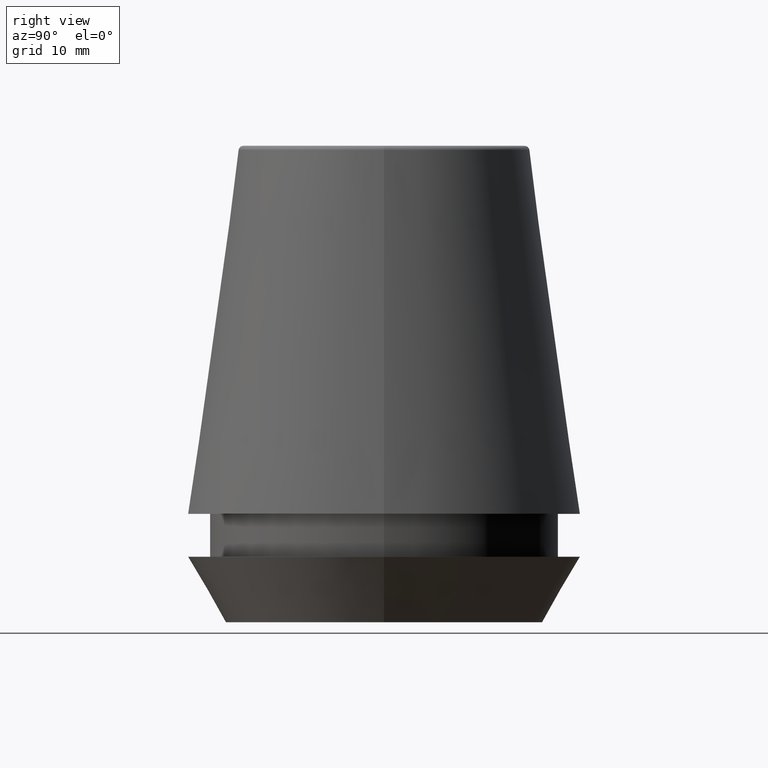
[diagram: clean part render]
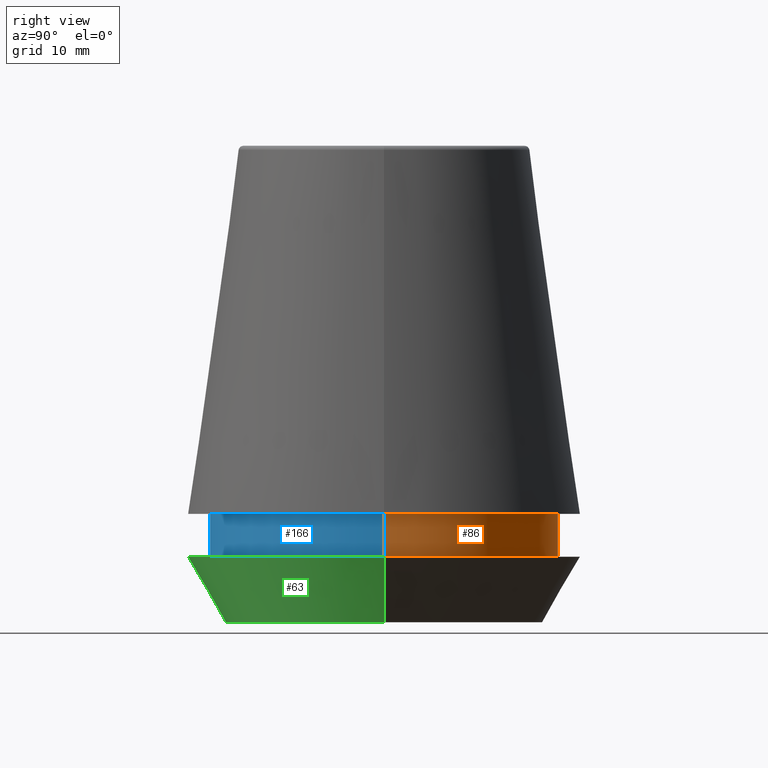
[diagram: same view with three faces highlighted in distinct colors, each labeled with its STEP entity id]
A machine part, right view with three faces highlighted in distinct colors.
Their STEP definitions:

[orange] entity #86 — the highlighted cylindrical surface (partial cylindrical patch) has radius 14.6 mm, axis along (-0, -0, 1).
#3 = ORIENTED_EDGE ( 'NONE', *, *, #177, .T. ) ;
#5 = VERTEX_POINT ( 'NONE', #70 ) ;
#11 = VECTOR ( 'NONE', #124, 1000.000000000000000 ) ;
#13 = CARTESIAN_POINT ( 'NONE',  ( 14.60000000000000000, 0.0000000000000000000, 9.099999999999997900 ) ) ;
#16 = DIRECTION ( 'NONE',  ( -0.0000000000000000000, -0.0000000000000000000, 1.000000000000000000 ) ) ;
#19 = CARTESIAN_POINT ( 'NONE',  ( 14.60000000000000000, 0.0000000000000000000, 101.8074564848000400 ) ) ;
#36 = CARTESIAN_POINT ( 'NONE',  ( -14.60000000000000000, 1.787984326755135800E-015, 101.8074564848000400 ) ) ;
#39 = DIRECTION ( 'NONE',  ( -0.0000000000000000000, -0.0000000000000000000, 1.000000000000000000 ) ) ;
#46 = LINE ( 'NONE', #36, #11 ) ;
#70 = CARTESIAN_POINT ( 'NONE',  ( 14.60000000000000000, 0.0000000000000000000, 5.500000000000005300 ) ) ;
#71 = EDGE_LOOP ( 'NONE', ( #3, #174, #133, #82 ) ) ;
#82 = ORIENTED_EDGE ( 'NONE', *, *, #283, .F. ) ;
#85 = VERTEX_POINT ( 'NONE', #153 ) ;
#86 = ADVANCED_FACE ( 'NONE', ( #230 ), #307, .T. ) ;
#93 = CARTESIAN_POINT ( 'NONE',  ( 0.0000000000000000000, 0.0000000000000000000, 101.8074564848000400 ) ) ;
#95 = CARTESIAN_POINT ( 'NONE',  ( -14.60000000000000000, 1.787984326755135800E-015, 9.099999999999997900 ) ) ;
#99 = LINE ( 'NONE', #19, #329 ) ;
#115 = VERTEX_POINT ( 'NONE', #13 ) ;
#124 = DIRECTION ( 'NONE',  ( -0.0000000000000000000, -0.0000000000000000000, 1.000000000000000000 ) ) ;
#133 = ORIENTED_EDGE ( 'NONE', *, *, #149, .F. ) ;
#136 = CIRCLE ( 'NONE', #299, 14.60000000000000000 ) ;
#149 = EDGE_CURVE ( 'NONE', #115, #214, #382, .T. ) ;
#153 = CARTESIAN_POINT ( 'NONE',  ( -14.60000000000000000, 1.787984326755135800E-015, 5.500000000000005300 ) ) ;
#156 = DIRECTION ( 'NONE',  ( 1.000000000000000000, 0.0000000000000000000, 0.0000000000000000000 ) ) ;
#174 = ORIENTED_EDGE ( 'NONE', *, *, #184, .T. ) ;
#177 = EDGE_CURVE ( 'NONE', #5, #85, #136, .T. ) ;
#184 = EDGE_CURVE ( 'NONE', #85, #214, #46, .T. ) ;
#214 = VERTEX_POINT ( 'NONE', #95 ) ;
#230 = FACE_OUTER_BOUND ( 'NONE', #71, .T. ) ;
#244 = DIRECTION ( 'NONE',  ( 1.000000000000000000, 0.0000000000000000000, 0.0000000000000000000 ) ) ;
#266 = AXIS2_PLACEMENT_3D ( 'NONE', #319, #16, #156 ) ;
#282 = AXIS2_PLACEMENT_3D ( 'NONE', #93, #39, #370 ) ;
#283 = EDGE_CURVE ( 'NONE', #5, #115, #99, .T. ) ;
#299 = AXIS2_PLACEMENT_3D ( 'NONE', #364, #311, #244 ) ;
#307 = CYLINDRICAL_SURFACE ( 'NONE', #282, 14.60000000000000000 ) ;
#311 = DIRECTION ( 'NONE',  ( -0.0000000000000000000, -0.0000000000000000000, 1.000000000000000000 ) ) ;
#319 = CARTESIAN_POINT ( 'NONE',  ( 0.0000000000000000000, 0.0000000000000000000, 9.099999999999997900 ) ) ;
#329 = VECTOR ( 'NONE', #338, 1000.000000000000000 ) ;
#338 = DIRECTION ( 'NONE',  ( -0.0000000000000000000, -0.0000000000000000000, 1.000000000000000000 ) ) ;
#364 = CARTESIAN_POINT ( 'NONE',  ( 0.0000000000000000000, 0.0000000000000000000, 5.500000000000005300 ) ) ;
#370 = DIRECTION ( 'NONE',  ( 1.000000000000000000, 0.0000000000000000000, 0.0000000000000000000 ) ) ;
#382 = CIRCLE ( 'NONE', #266, 14.60000000000000000 ) ;

[blue] entity #166 — the highlighted cylindrical surface (partial cylindrical patch) has radius 14.6 mm, axis along (-0, -0, 1).
#5 = VERTEX_POINT ( 'NONE', #70 ) ;
#11 = VECTOR ( 'NONE', #124, 1000.000000000000000 ) ;
#13 = CARTESIAN_POINT ( 'NONE',  ( 14.60000000000000000, 0.0000000000000000000, 9.099999999999997900 ) ) ;
#19 = CARTESIAN_POINT ( 'NONE',  ( 14.60000000000000000, 0.0000000000000000000, 101.8074564848000400 ) ) ;
#24 = EDGE_CURVE ( 'NONE', #85, #5, #264, .T. ) ;
#30 = EDGE_LOOP ( 'NONE', ( #216, #231, #383, #331 ) ) ;
#36 = CARTESIAN_POINT ( 'NONE',  ( -14.60000000000000000, 1.787984326755135800E-015, 101.8074564848000400 ) ) ;
#46 = LINE ( 'NONE', #36, #11 ) ;
#70 = CARTESIAN_POINT ( 'NONE',  ( 14.60000000000000000, 0.0000000000000000000, 5.500000000000005300 ) ) ;
#85 = VERTEX_POINT ( 'NONE', #153 ) ;
#95 = CARTESIAN_POINT ( 'NONE',  ( -14.60000000000000000, 1.787984326755135800E-015, 9.099999999999997900 ) ) ;
#99 = LINE ( 'NONE', #19, #329 ) ;
#111 = DIRECTION ( 'NONE',  ( 1.000000000000000000, 0.0000000000000000000, 0.0000000000000000000 ) ) ;
#115 = VERTEX_POINT ( 'NONE', #13 ) ;
#124 = DIRECTION ( 'NONE',  ( -0.0000000000000000000, -0.0000000000000000000, 1.000000000000000000 ) ) ;
#128 = DIRECTION ( 'NONE',  ( -0.0000000000000000000, -0.0000000000000000000, 1.000000000000000000 ) ) ;
#135 = CARTESIAN_POINT ( 'NONE',  ( 0.0000000000000000000, 0.0000000000000000000, 9.099999999999997900 ) ) ;
#150 = DIRECTION ( 'NONE',  ( -0.0000000000000000000, -0.0000000000000000000, 1.000000000000000000 ) ) ;
#153 = CARTESIAN_POINT ( 'NONE',  ( -14.60000000000000000, 1.787984326755135800E-015, 5.500000000000005300 ) ) ;
#164 = AXIS2_PLACEMENT_3D ( 'NONE', #212, #150, #111 ) ;
#165 = DIRECTION ( 'NONE',  ( 1.000000000000000000, 0.0000000000000000000, 0.0000000000000000000 ) ) ;
#166 = ADVANCED_FACE ( 'NONE', ( #201 ), #189, .T. ) ;
#184 = EDGE_CURVE ( 'NONE', #85, #214, #46, .T. ) ;
#189 = CYLINDRICAL_SURFACE ( 'NONE', #306, 14.60000000000000000 ) ;
#201 = FACE_OUTER_BOUND ( 'NONE', #30, .T. ) ;
#212 = CARTESIAN_POINT ( 'NONE',  ( 0.0000000000000000000, 0.0000000000000000000, 5.500000000000005300 ) ) ;
#214 = VERTEX_POINT ( 'NONE', #95 ) ;
#216 = ORIENTED_EDGE ( 'NONE', *, *, #184, .F. ) ;
#231 = ORIENTED_EDGE ( 'NONE', *, *, #24, .T. ) ;
#239 = CIRCLE ( 'NONE', #365, 14.60000000000000000 ) ;
#252 = CARTESIAN_POINT ( 'NONE',  ( 0.0000000000000000000, 0.0000000000000000000, 101.8074564848000400 ) ) ;
#264 = CIRCLE ( 'NONE', #164, 14.60000000000000000 ) ;
#283 = EDGE_CURVE ( 'NONE', #5, #115, #99, .T. ) ;
#284 = DIRECTION ( 'NONE',  ( 1.000000000000000000, 0.0000000000000000000, 0.0000000000000000000 ) ) ;
#306 = AXIS2_PLACEMENT_3D ( 'NONE', #252, #128, #284 ) ;
#329 = VECTOR ( 'NONE', #338, 1000.000000000000000 ) ;
#331 = ORIENTED_EDGE ( 'NONE', *, *, #361, .F. ) ;
#338 = DIRECTION ( 'NONE',  ( -0.0000000000000000000, -0.0000000000000000000, 1.000000000000000000 ) ) ;
#343 = DIRECTION ( 'NONE',  ( -0.0000000000000000000, -0.0000000000000000000, 1.000000000000000000 ) ) ;
#361 = EDGE_CURVE ( 'NONE', #214, #115, #239, .T. ) ;
#365 = AXIS2_PLACEMENT_3D ( 'NONE', #135, #343, #165 ) ;
#383 = ORIENTED_EDGE ( 'NONE', *, *, #283, .T. ) ;

[green] entity #63 — the highlighted conical surface has half-angle 30 deg.
#4 = EDGE_CURVE ( 'NONE', #273, #23, #179, .T. ) ;
#12 = DIRECTION ( 'NONE',  ( -0.0000000000000000000, -0.0000000000000000000, 1.000000000000000000 ) ) ;
#23 = VERTEX_POINT ( 'NONE', #118 ) ;
#25 = CARTESIAN_POINT ( 'NONE',  ( 0.0000000000000000000, 0.0000000000000000000, 5.500000000000005300 ) ) ;
#49 = CARTESIAN_POINT ( 'NONE',  ( -13.32457351945710200, 1.826228424826902600E-015, 0.0000000000000000000 ) ) ;
#56 = DIRECTION ( 'NONE',  ( 1.000000000000000000, 0.0000000000000000000, 0.0000000000000000000 ) ) ;
#63 = ADVANCED_FACE ( 'NONE', ( #119 ), #74, .T. ) ;
#67 = ORIENTED_EDGE ( 'NONE', *, *, #269, .T. ) ;
#74 = CONICAL_SURFACE ( 'NONE', #148, 13.32457351945710200, 0.5235987755982927100 ) ;
#75 = VERTEX_POINT ( 'NONE', #249 ) ;
#92 = ORIENTED_EDGE ( 'NONE', *, *, #369, .F. ) ;
#96 = VECTOR ( 'NONE', #354, 999.9999999999998900 ) ;
#98 = DIRECTION ( 'NONE',  ( 0.4999999999999947300, 0.0000000000000000000, 0.8660254037844418200 ) ) ;
#107 = EDGE_CURVE ( 'NONE', #273, #75, #145, .T. ) ;
#114 = VERTEX_POINT ( 'NONE', #218 ) ;
#117 = VECTOR ( 'NONE', #98, 999.9999999999998900 ) ;
#118 = CARTESIAN_POINT ( 'NONE',  ( -16.50000000000000000, 2.020667218593133100E-015, 5.500000000000005300 ) ) ;
#119 = FACE_OUTER_BOUND ( 'NONE', #271, .T. ) ;
#121 = DIRECTION ( 'NONE',  ( -0.0000000000000000000, -0.0000000000000000000, 1.000000000000000000 ) ) ;
#137 = AXIS2_PLACEMENT_3D ( 'NONE', #280, #12, #372 ) ;
#145 = CIRCLE ( 'NONE', #137, 13.32457351945710200 ) ;
#148 = AXIS2_PLACEMENT_3D ( 'NONE', #367, #121, #247 ) ;
#152 = CIRCLE ( 'NONE', #356, 16.50000000000000000 ) ;
#178 = CARTESIAN_POINT ( 'NONE',  ( -13.32457351945710200, 1.631789631060672300E-015, 0.0000000000000000000 ) ) ;
#179 = LINE ( 'NONE', #178, #96 ) ;
#200 = ORIENTED_EDGE ( 'NONE', *, *, #107, .T. ) ;
#218 = CARTESIAN_POINT ( 'NONE',  ( 16.50000000000000000, 0.0000000000000000000, 5.500000000000005300 ) ) ;
#232 = DIRECTION ( 'NONE',  ( -0.0000000000000000000, -0.0000000000000000000, 1.000000000000000000 ) ) ;
#247 = DIRECTION ( 'NONE',  ( 1.000000000000000000, 0.0000000000000000000, 0.0000000000000000000 ) ) ;
#249 = CARTESIAN_POINT ( 'NONE',  ( 13.32457351945710200, 0.0000000000000000000, 0.0000000000000000000 ) ) ;
#269 = EDGE_CURVE ( 'NONE', #75, #114, #351, .T. ) ;
#271 = EDGE_LOOP ( 'NONE', ( #317, #200, #67, #92 ) ) ;
#273 = VERTEX_POINT ( 'NONE', #49 ) ;
#280 = CARTESIAN_POINT ( 'NONE',  ( 0.0000000000000000000, 0.0000000000000000000, 0.0000000000000000000 ) ) ;
#293 = CARTESIAN_POINT ( 'NONE',  ( 13.32457351945710200, 0.0000000000000000000, 0.0000000000000000000 ) ) ;
#317 = ORIENTED_EDGE ( 'NONE', *, *, #4, .F. ) ;
#351 = LINE ( 'NONE', #293, #117 ) ;
#354 = DIRECTION ( 'NONE',  ( -0.4999999999999947300, 6.123233995736700700E-017, 0.8660254037844418200 ) ) ;
#356 = AXIS2_PLACEMENT_3D ( 'NONE', #25, #232, #56 ) ;
#367 = CARTESIAN_POINT ( 'NONE',  ( 0.0000000000000000000, 0.0000000000000000000, 0.0000000000000000000 ) ) ;
#369 = EDGE_CURVE ( 'NONE', #23, #114, #152, .T. ) ;
#372 = DIRECTION ( 'NONE',  ( 1.000000000000000000, 0.0000000000000000000, 0.0000000000000000000 ) ) ;